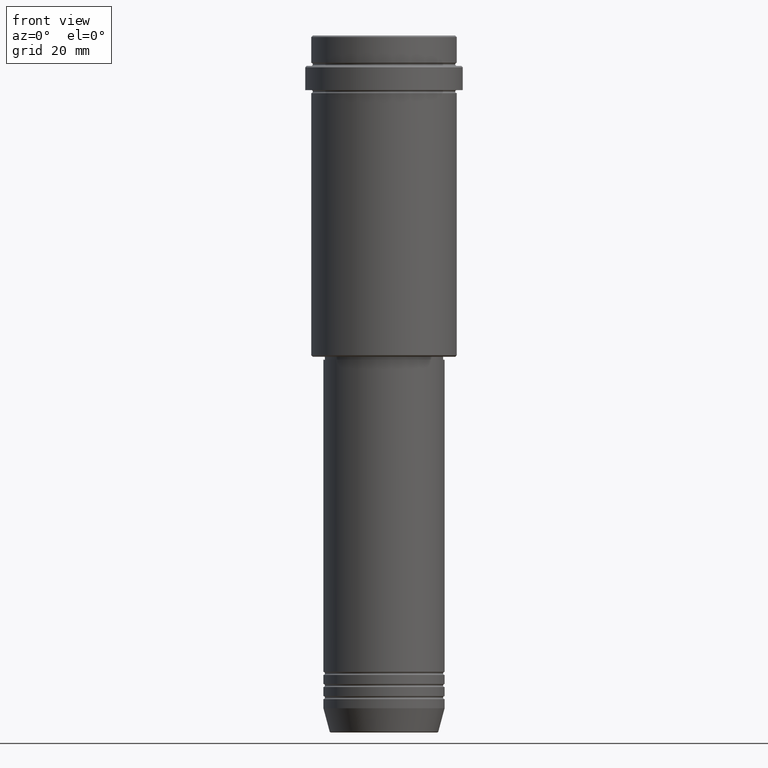
[diagram: clean part render]
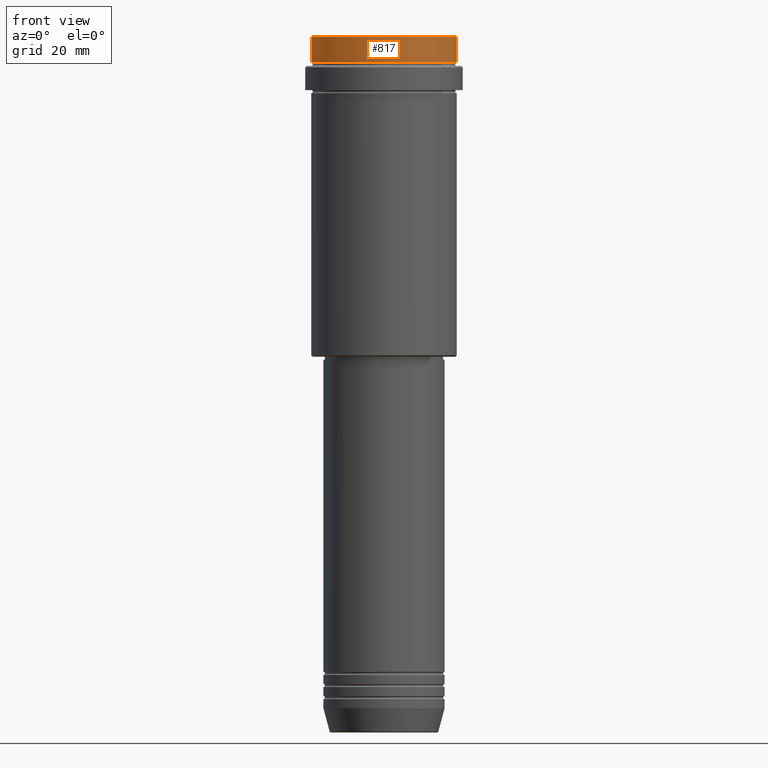
[diagram: same view with one face highlighted and labeled with its STEP entity id]
A machine part, front view. The second image highlights one B-rep face of the part: STEP entity #817.
In plain terms, the highlighted cylindrical surface (partial cylindrical patch) has radius 24 mm, axis along (-0, -0, 1).
Its self-contained STEP definition (entity closure, byte-faithful):
#1 = CARTESIAN_POINT ( 'NONE',  ( -23.99999999999998579, 2.939152317953646317E-15, -0.4999999999999657496 ) ) ;
#10 = VERTEX_POINT ( 'NONE', #475 ) ;
#16 = LINE ( 'NONE', #660, #1393 ) ;
#25 = AXIS2_PLACEMENT_3D ( 'NONE', #808, #1116, #364 ) ;
#34 = EDGE_CURVE ( 'NONE', #80, #78, #870, .T. ) ;
#60 = CARTESIAN_POINT ( 'NONE',  ( 23.99999999999997158, 0.000000000000000000, -8.999999999999998224 ) ) ;
#78 = VERTEX_POINT ( 'NONE', #60 ) ;
#80 = VERTEX_POINT ( 'NONE', #482 ) ;
#114 = DIRECTION ( 'NONE',  ( -0.000000000000000000, -0.000000000000000000, 1.000000000000000000 ) ) ;
#123 = DIRECTION ( 'NONE',  ( -0.000000000000000000, -0.000000000000000000, 1.000000000000000000 ) ) ;
#217 = CARTESIAN_POINT ( 'NONE',  ( -23.99999999999998579, 2.939152317953646317E-15, 0.000000000000000000 ) ) ;
#328 = VECTOR ( 'NONE', #114, 1000.000000000000000 ) ;
#364 = DIRECTION ( 'NONE',  ( 1.000000000000000000, 0.000000000000000000, 0.000000000000000000 ) ) ;
#475 = CARTESIAN_POINT ( 'NONE',  ( 23.99999999999998579, 0.000000000000000000, -0.4999999999999657496 ) ) ;
#482 = CARTESIAN_POINT ( 'NONE',  ( -23.99999999999997158, 2.939152317953645133E-15, -8.999999999999998224 ) ) ;
#536 = DIRECTION ( 'NONE',  ( -0.000000000000000000, -0.000000000000000000, 1.000000000000000000 ) ) ;
#565 = DIRECTION ( 'NONE',  ( 1.000000000000000000, 0.000000000000000000, 0.000000000000000000 ) ) ;
#606 = DIRECTION ( 'NONE',  ( 1.000000000000000000, 0.000000000000000000, 0.000000000000000000 ) ) ;
#660 = CARTESIAN_POINT ( 'NONE',  ( 23.99999999999998579, 0.000000000000000000, 0.000000000000000000 ) ) ;
#765 = CARTESIAN_POINT ( 'NONE',  ( 0.000000000000000000, 0.000000000000000000, -8.999999999999998224 ) ) ;
#808 = CARTESIAN_POINT ( 'NONE',  ( 0.000000000000000000, 0.000000000000000000, -0.4999999999999657496 ) ) ;
#817 = ADVANCED_FACE ( 'NONE', ( #1280 ), #1384, .T. ) ;
#870 = CIRCLE ( 'NONE', #1251, 23.99999999999997158 ) ;
#956 = EDGE_CURVE ( 'NONE', #10, #1327, #1163, .T. ) ;
#965 = ORIENTED_EDGE ( 'NONE', *, *, #34, .T. ) ;
#1014 = EDGE_LOOP ( 'NONE', ( #1291, #965, #1262, #1166 ) ) ;
#1058 = CARTESIAN_POINT ( 'NONE',  ( 0.000000000000000000, 0.000000000000000000, 0.000000000000000000 ) ) ;
#1062 = AXIS2_PLACEMENT_3D ( 'NONE', #1058, #1158, #606 ) ;
#1116 = DIRECTION ( 'NONE',  ( 0.000000000000000000, 0.000000000000000000, -1.000000000000000000 ) ) ;
#1144 = EDGE_CURVE ( 'NONE', #80, #1327, #1210, .T. ) ;
#1158 = DIRECTION ( 'NONE',  ( -0.000000000000000000, -0.000000000000000000, 1.000000000000000000 ) ) ;
#1163 = CIRCLE ( 'NONE', #25, 23.99999999999998579 ) ;
#1166 = ORIENTED_EDGE ( 'NONE', *, *, #956, .T. ) ;
#1210 = LINE ( 'NONE', #217, #328 ) ;
#1251 = AXIS2_PLACEMENT_3D ( 'NONE', #765, #123, #565 ) ;
#1262 = ORIENTED_EDGE ( 'NONE', *, *, #1274, .T. ) ;
#1274 = EDGE_CURVE ( 'NONE', #78, #10, #16, .T. ) ;
#1280 = FACE_OUTER_BOUND ( 'NONE', #1014, .T. ) ;
#1291 = ORIENTED_EDGE ( 'NONE', *, *, #1144, .F. ) ;
#1327 = VERTEX_POINT ( 'NONE', #1 ) ;
#1384 = CYLINDRICAL_SURFACE ( 'NONE', #1062, 23.99999999999998579 ) ;
#1393 = VECTOR ( 'NONE', #536, 1000.000000000000000 ) ;